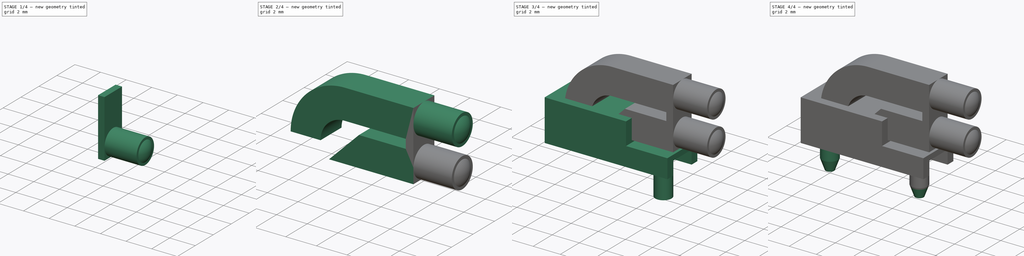
[diagram: build sequence overview — one tinted view per stage of 4, left to right]
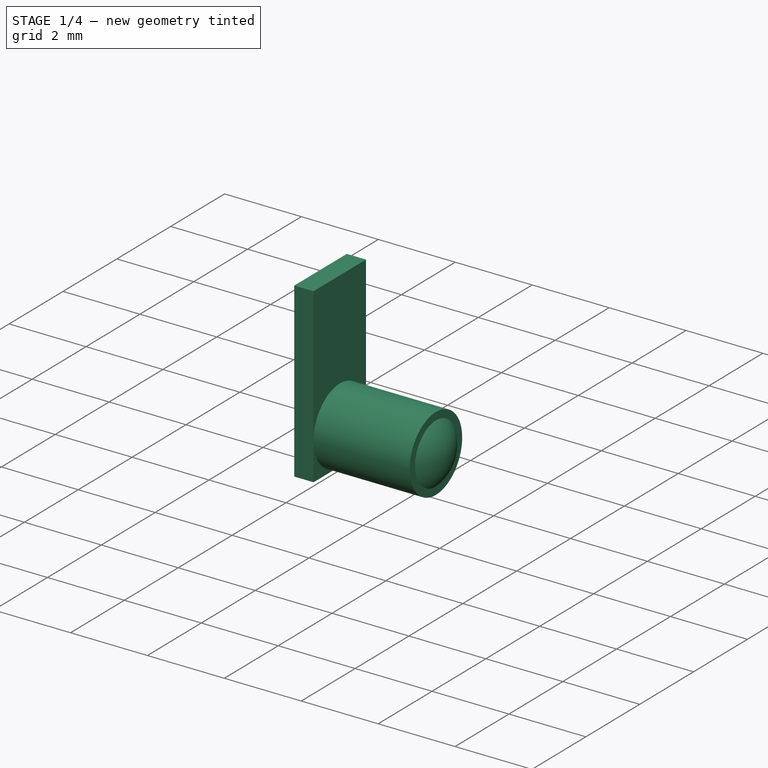
[diagram: stage 1 of 4 — iso view after this stage's code; geometry added in this stage tinted green]
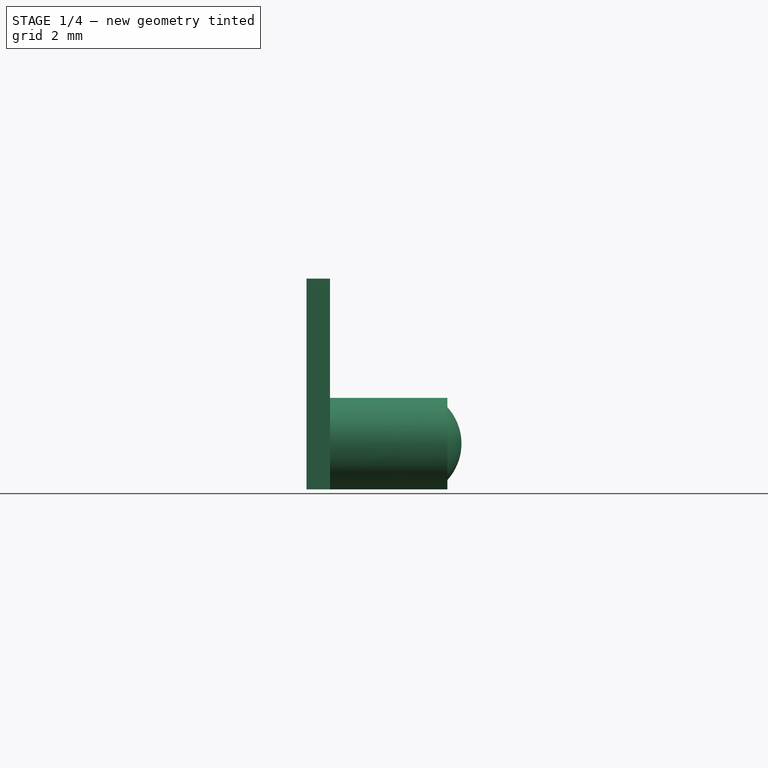
[diagram: stage 1 of 4 — front view after this stage's code; geometry added in this stage tinted green]
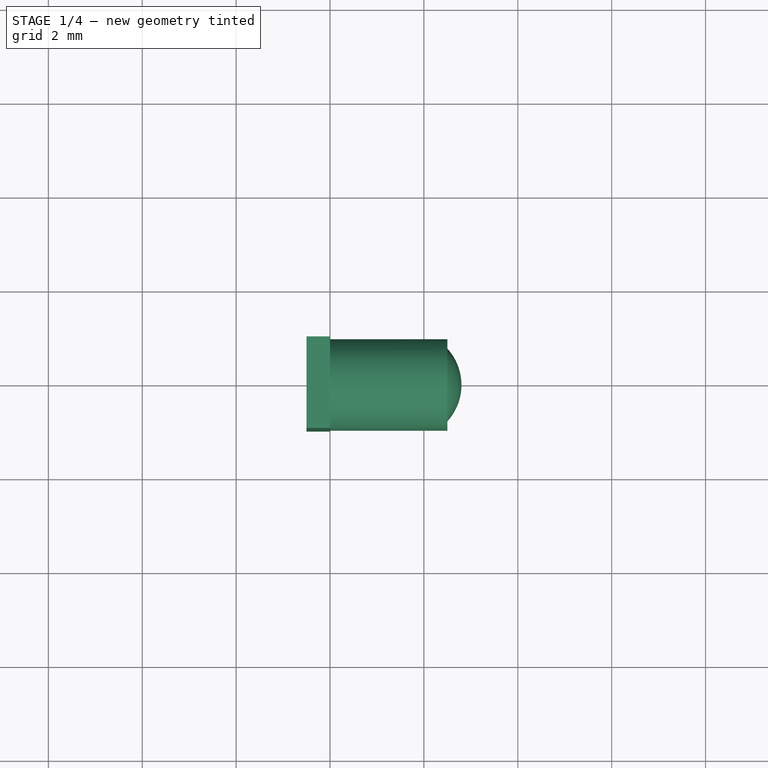
[diagram: stage 1 of 4 — top view after this stage's code; geometry added in this stage tinted green]
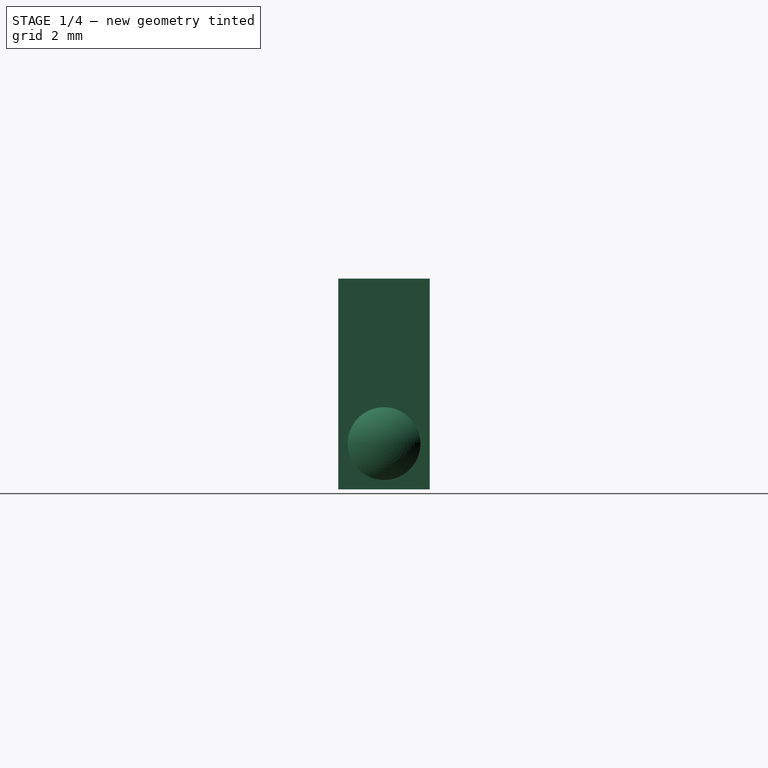
[diagram: stage 1 of 4 — right view after this stage's code; geometry added in this stage tinted green]
FCSTD DOCUMENT  (FreeCAD 0.19R24267 +99 (Git))
Label: Lightpipe_Mentor_1296-2012
License: Creative Commons Attribution-NonCommercial-ShareAlike
LicenseURL: http://creativecommons.org/licenses/by-nc-sa/4.0/
objects: Sketcher::SketchObject×7, PartDesign::Pad×5, PartDesign::LinearPattern×2, PartDesign::Revolution×1, PartDesign::Pocket×1, PartDesign::Chamfer×1, PartDesign::Body×1, PartDesign::CoordinateSystem×1, App::Part×1
note: 27 computed .brp shape members not serialized (recipe doc carries the construction recipe); baked Part::Feature solids carry a one-line shape summary decoded from their .brp

FEATURE [Sketcher::SketchObject] Sketch
  FullyConstrained = true
  MapMode = 5
  Placement = pos=(0,0,0) rot=(1,0,0;1.5708rad)
  Support = -> [XZ_Plane]
  sketch-geometry (5):
    g0: LineSegment StartX=0 StartY=0 StartZ=0 EndX=0 EndY=0.975 EndZ=0
    g1: LineSegment StartX=0 StartY=0.975 StartZ=0 EndX=2.5 EndY=0.975 EndZ=0
    g2: LineSegment StartX=2.5 StartY=0.975 StartZ=0 EndX=2.5 EndY=0.775 EndZ=0
    g3: ArcOfCircle CenterX=1.64896 CenterY=0 CenterZ=0 NormalX=0 NormalY=0 NormalZ=1 AngleXU=0 Radius=1.15104 StartAngle=0 EndAngle=0.738667
    g4: LineSegment StartX=2.8 StartY=0 StartZ=0 EndX=0 EndY=0 EndZ=0
  constraints (15):
    c: Coincident(g-1,g0)
    c: PointOnObject(g0,g-2)
    c: Coincident(g0,g1)
    c: Horizontal(g1)
    c: Coincident(g1,g2)
    c: PointOnObject(g3,g-1)
    c: Coincident(g3,g4)
    c: Coincident(g4,g0)
    c: Coincident(g3,g2)
    c: PointOnObject(g3,g-1)
    c: Distance(g0) = 0.975
    c: Vertical(g2)
    c: Distance(g4) = 2.8
    c: Distance(g1) = 2.5
    c: Distance(g2) = 0.2
FEATURE [Sketcher::SketchObject] Sketch001
  FullyConstrained = true
  MapMode = 5
  Placement = pos=(0,0,0) rot=(0.57735,0.57735,0.57735;2.0944rad)
  Support = -> [YZ_Plane]
  sketch-geometry (4):
    g0: LineSegment StartX=-0.975 StartY=3.515 StartZ=0 EndX=0.975 EndY=3.515 EndZ=0
    g1: LineSegment StartX=0.975 StartY=3.515 StartZ=0 EndX=0.975 EndY=-0.975 EndZ=0
    g2: LineSegment StartX=0.975 StartY=-0.975 StartZ=0 EndX=-0.975 EndY=-0.975 EndZ=0
    g3: LineSegment StartX=-0.975 StartY=-0.975 StartZ=0 EndX=-0.975 EndY=3.515 EndZ=0
  constraints (11):
    c: Coincident(g0,g1)
    c: Coincident(g1,g2)
    c: Coincident(g2,g3)
    c: Coincident(g3,g0)
    c: Horizontal(g0)
    c: Vertical(g1)
    c: Vertical(g3)
    c: Symmetric(g2,g1,g-2)
    c: Distance(g0) = 1.95
    c: Distance(g1) = 4.49
    c: Distance(g-1,g2) = 0.975
FEATURE [PartDesign::Pad] Pad
  Direction = (1,1,1)
  Length = 0.5
  Length2 = 100
  Placement = pos=(0,0,0) rot=(0.57735,0.57735,0.57735;2.0944rad)
  Profile = -> Sketch001
  Refine = true
  Reversed = true
  Type = 0
FEATURE [PartDesign::Revolution] Revolution
  Angle = 360
  Axis = (1,0,0)
  Base = (0,0,0)
  BaseFeature = -> Pad
  Placement = pos=(0,0,0) rot=(0.57735,0.57735,0.57735;2.0944rad)
  Profile = -> Sketch
  ReferenceAxis = -> X_Axis
  Refine = true
  Reversed = true
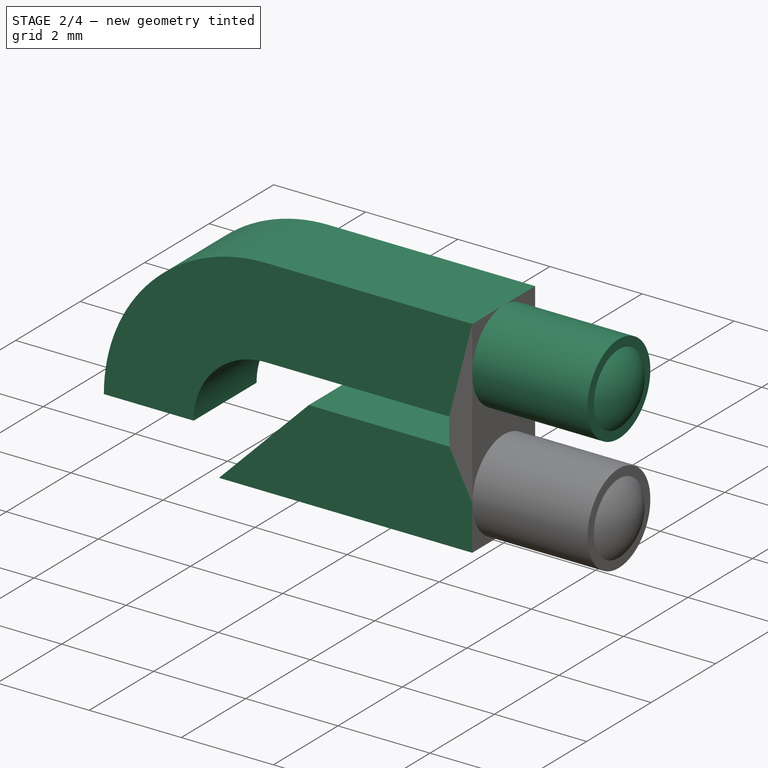
[diagram: stage 2 of 4 — iso view after this stage's code; geometry added in this stage tinted green]
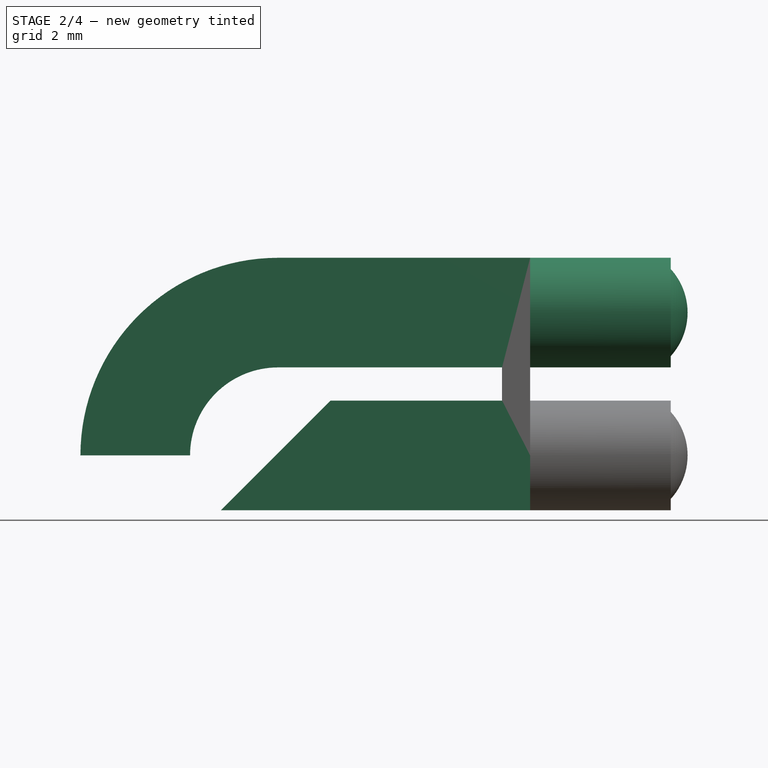
[diagram: stage 2 of 4 — front view after this stage's code; geometry added in this stage tinted green]
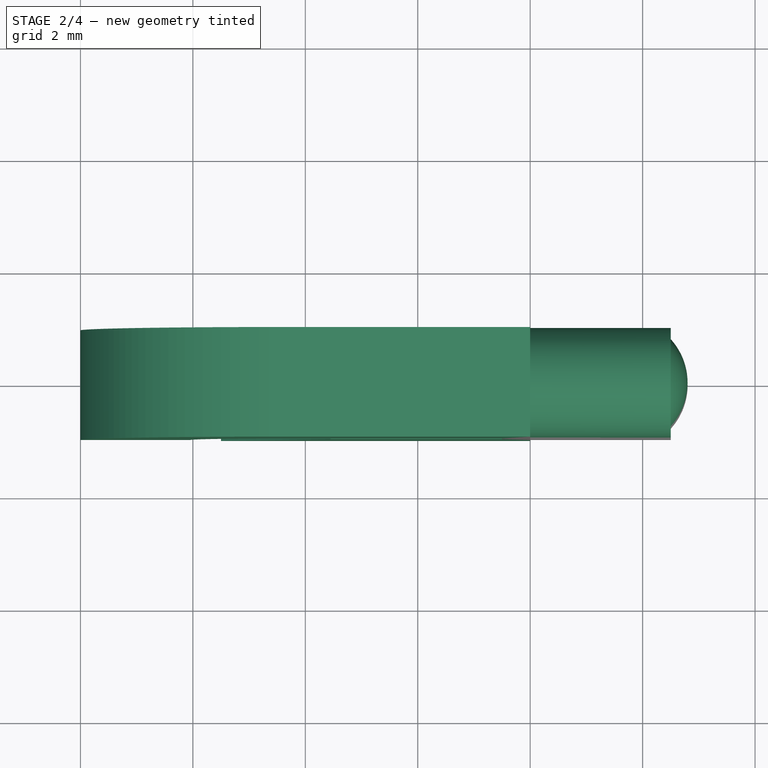
[diagram: stage 2 of 4 — top view after this stage's code; geometry added in this stage tinted green]
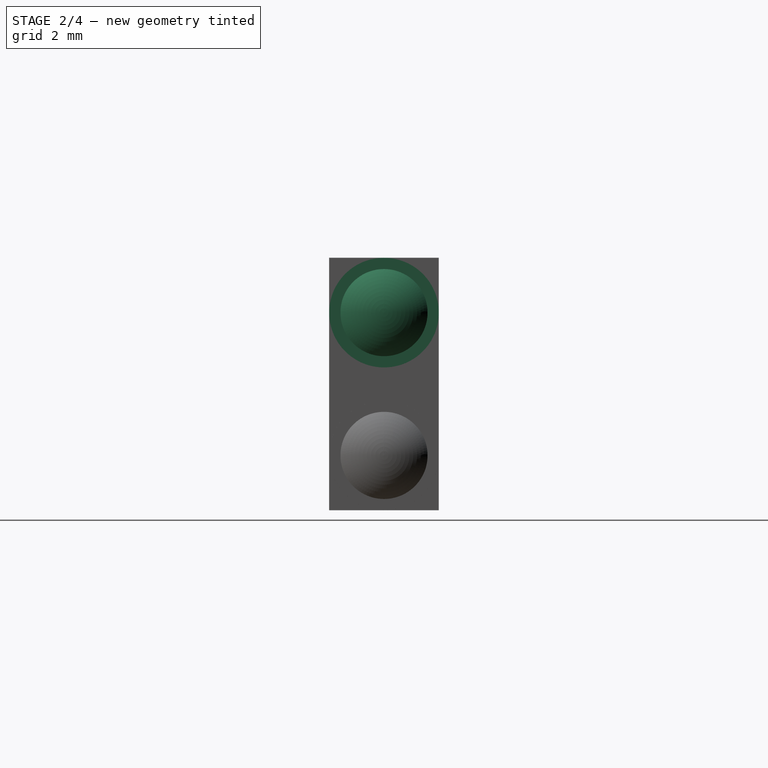
[diagram: stage 2 of 4 — right view after this stage's code; geometry added in this stage tinted green]
FEATURE [PartDesign::LinearPattern] LinearPattern
  BaseFeature = -> Revolution
  Direction = -> Z_Axis
  Length = 2.54
  Occurrences = 2
  Originals = -> [Revolution]
  Placement = pos=(0,0,0) rot=(0.57735,0.57735,0.57735;2.0944rad)
  Refine = true
FEATURE [Sketcher::SketchObject] Sketch002
  FullyConstrained = true
  MapMode = 5
  Placement = pos=(0,0,0) rot=(1,0,0;1.5708rad)
  Support = -> [XZ_Plane]
  sketch-geometry (6):
    g0: LineSegment StartX=-0.5 StartY=3.515 StartZ=0 EndX=-4.485 EndY=3.515 EndZ=0
    g1: ArcOfCircle CenterX=-4.485 CenterY=0 CenterZ=0 NormalX=0 NormalY=0 NormalZ=1 AngleXU=0 Radius=3.515 StartAngle=1.5708 EndAngle=3.14159
    g2: LineSegment StartX=-8 StartY=4e-16 StartZ=0 EndX=-6.05 EndY=4e-16 EndZ=0
    g3: LineSegment StartX=-4.485 StartY=1.565 StartZ=0 EndX=-0.5 EndY=1.565 EndZ=0
    g4: LineSegment StartX=-0.5 StartY=1.565 StartZ=0 EndX=-0.5 EndY=3.515 EndZ=0
    g5: ArcOfCircle CenterX=-4.485 CenterY=0 CenterZ=0 NormalX=0 NormalY=0 NormalZ=1 AngleXU=0 Radius=1.565 StartAngle=1.5708 EndAngle=3.14159
  constraints (17):
    c: Horizontal(g0)
    c: Tangent(g0,g1) = -1.5708
    c: Angle(g1) = 1.5708
    c: Horizontal(g2)
    c: Coincident(g3,g4)
    c: Coincident(g4,g0)
    c: Coincident(g2,g1)
    c: Horizontal(g3)
    c: Vertical(g4)
    c: Coincident(g5,g1)
    c: Coincident(g5,g2)
    c: Tangent(g5,g3) = 1.5708
    c: PointOnObject(g1,g-1)
    c: Distance(g2) = 1.95
    c: DistanceY(g-1,g0) = 3.515
    c: DistanceX(g-2,g3) = -0.5
    c: DistanceX(g-2,g1) = -8
FEATURE [PartDesign::Pad] Pad001
  BaseFeature = -> LinearPattern
  Direction = (1,1,1)
  Length = 1.95
  Length2 = 100
  Midplane = true
  Placement = pos=(0,0,0) rot=(0.57735,0.57735,0.57735;2.0944rad)
  Profile = -> Sketch002
  Refine = true
  Type = 0
FEATURE [Sketcher::SketchObject] Sketch003
  FullyConstrained = true
  MapMode = 5
  Placement = pos=(0,0,0) rot=(1,0,0;1.5708rad)
  Support = -> [XZ_Plane]
  sketch-geometry (4):
    g0: LineSegment StartX=-0.5 StartY=0.975 StartZ=0 EndX=-3.55 EndY=0.975 EndZ=0
    g1: LineSegment StartX=-5.5 StartY=-0.975 StartZ=0 EndX=-0.5 EndY=-0.975 EndZ=0
    g2: LineSegment StartX=-0.5 StartY=-0.975 StartZ=0 EndX=-0.5 EndY=0.975 EndZ=0
    g3: LineSegment StartX=-3.55 StartY=0.975 StartZ=0 EndX=-5.5 EndY=-0.975 EndZ=0
  constraints (11):
    c: Horizontal(g0)
    c: Coincident(g1,g2)
    c: Coincident(g2,g0)
    c: Horizontal(g1)
    c: DistanceX(g-2,g1) = -0.5
    c: Distance(g2) = 1.95
    c: Symmetric(g1,g0,g-1)
    c: Coincident(g3,g0)
    c: Coincident(g3,g1)
    c: Angle(g1,g3) = 0.785398
    c: Distance(g1) = 5
FEATURE [PartDesign::Pad] Pad002
  BaseFeature = -> Pad001
  Direction = (1,1,1)
  Length = 1.95
  Length2 = 100
  Midplane = true
  Placement = pos=(0,0,0) rot=(0.57735,0.57735,0.57735;2.0944rad)
  Profile = -> Sketch003
  Refine = true
  Type = 0
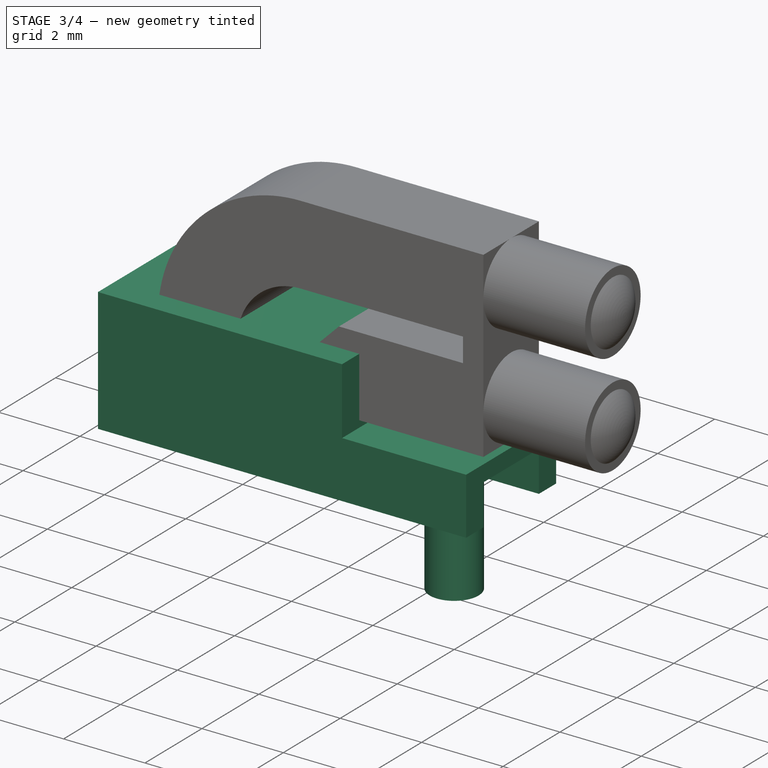
[diagram: stage 3 of 4 — iso view after this stage's code; geometry added in this stage tinted green]
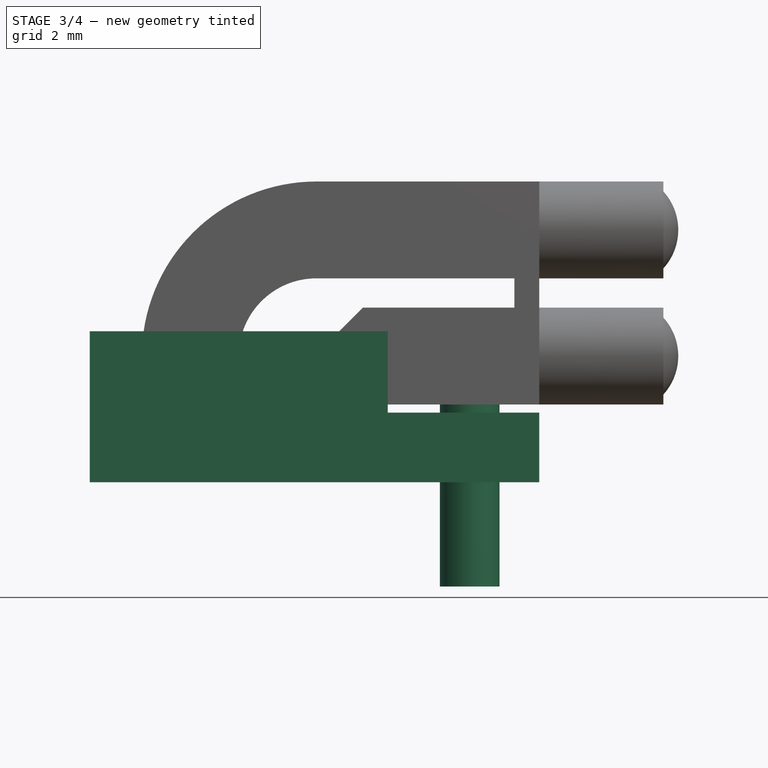
[diagram: stage 3 of 4 — front view after this stage's code; geometry added in this stage tinted green]
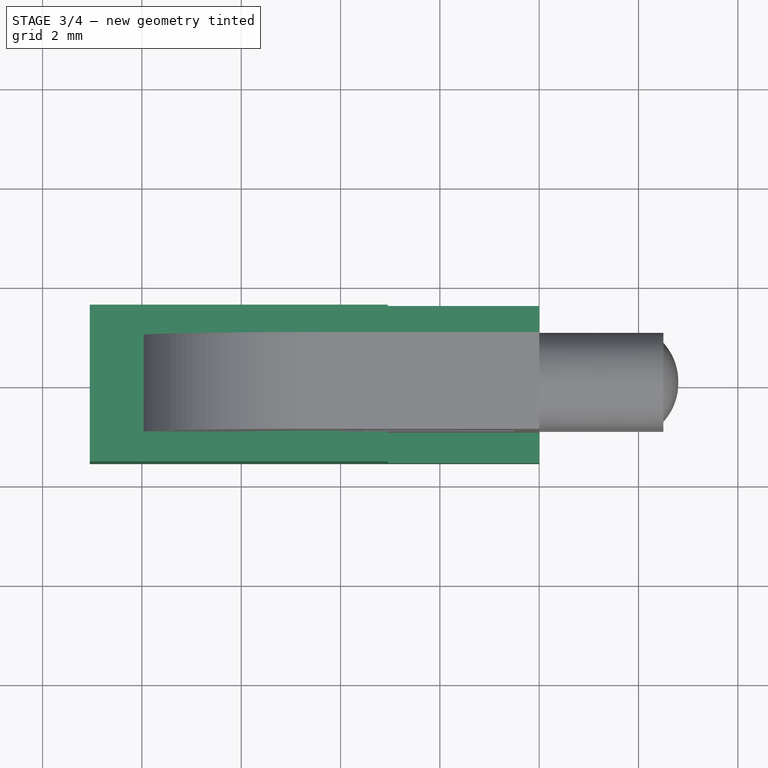
[diagram: stage 3 of 4 — top view after this stage's code; geometry added in this stage tinted green]
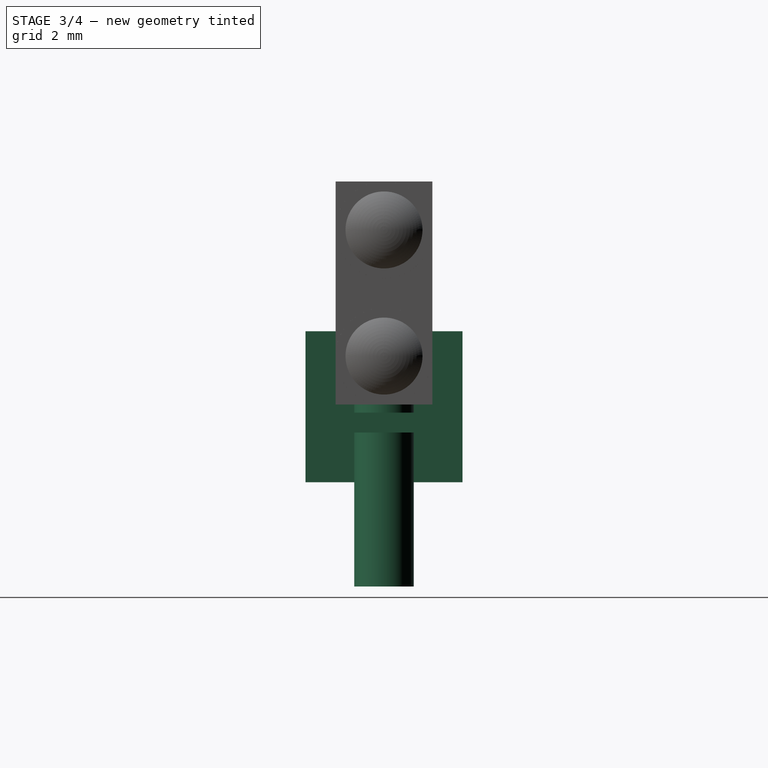
[diagram: stage 3 of 4 — right view after this stage's code; geometry added in this stage tinted green]
FEATURE [Sketcher::SketchObject] Sketch004
  FullyConstrained = true
  MapMode = 5
  Placement = pos=(0,0,0) rot=(1,0,0;1.5708rad)
  Support = -> [XZ_Plane]
  sketch-geometry (6):
    g0: LineSegment StartX=0 StartY=-2.54 StartZ=0 EndX=-9.05 EndY=-2.54 EndZ=0
    g1: LineSegment StartX=-9.05 StartY=-2.54 StartZ=0 EndX=-9.05 EndY=0.5 EndZ=0
    g2: LineSegment StartX=-9.05 StartY=0.5 StartZ=0 EndX=-3.05 EndY=0.5 EndZ=0
    g3: LineSegment StartX=-3.05 StartY=0.5 StartZ=0 EndX=-3.05 EndY=-1.14 EndZ=0
    g4: LineSegment StartX=-3.05 StartY=-1.14 StartZ=0 EndX=0 EndY=-1.14 EndZ=0
    g5: LineSegment StartX=0 StartY=-1.14 StartZ=0 EndX=0 EndY=-2.54 EndZ=0
  constraints (18):
    c: PointOnObject(g0,g-2)
    c: Horizontal(g0)
    c: Coincident(g0,g1)
    c: Coincident(g1,g2)
    c: Horizontal(g2)
    c: Coincident(g2,g3)
    c: Coincident(g3,g4)
    c: PointOnObject(g4,g-2)
    c: Horizontal(g4)
    c: Coincident(g4,g5)
    c: Coincident(g5,g0)
    c: Vertical(g3)
    c: Vertical(g1)
    c: Distance(g-1,g1) = 9.05
    c: DistanceY(g-1,g0) = -2.54
    c: Distance(g5) = 1.4
    c: Distance(g-1,g2) = 0.5
    c: Distance(g2) = 6
FEATURE [PartDesign::Pad] Pad003
  BaseFeature = -> Pad002
  Direction = (1,1,1)
  Length = 3.16
  Length2 = 100
  Midplane = true
  Placement = pos=(0,0,0) rot=(0.57735,0.57735,0.57735;2.0944rad)
  Profile = -> Sketch004
  Refine = true
  Type = 0
FEATURE [Sketcher::SketchObject] Sketch005
  FullyConstrained = true
  MapMode = 5
  Placement = pos=(0,-1.1e-15,-2.54) rot=(0.707107,0.707107,0;3.14159rad)
  Support = -> [Pad003]
  sketch-geometry (8):
    g0: LineSegment StartX=-0.975 StartY=0 StartZ=0 EndX=0.975 EndY=0 EndZ=0
    g1: LineSegment StartX=0.975 StartY=0 StartZ=0 EndX=0.975 EndY=-4.5 EndZ=0
    g2: LineSegment StartX=0.975 StartY=-4.5 StartZ=0 EndX=-0.975 EndY=-4.5 EndZ=0
    g3: LineSegment StartX=-0.975 StartY=-4.5 StartZ=0 EndX=-0.975 EndY=0 EndZ=0
    g4: LineSegment StartX=-0.975 StartY=-5 StartZ=0 EndX=0.975 EndY=-5 EndZ=0
    g5: LineSegment StartX=0.975 StartY=-5 StartZ=0 EndX=0.975 EndY=-9.05 EndZ=0
    g6: LineSegment StartX=0.975 StartY=-9.05 StartZ=0 EndX=-0.975 EndY=-9.05 EndZ=0
    g7: LineSegment StartX=-0.975 StartY=-9.05 StartZ=0 EndX=-0.975 EndY=-5 EndZ=0
  constraints (23):
    c: Coincident(g0,g1)
    c: Coincident(g1,g2)
    c: Coincident(g2,g3)
    c: Coincident(g3,g0)
    c: Horizontal(g0)
    c: Horizontal(g2)
    c: Vertical(g1)
    c: Vertical(g3)
    c: Coincident(g4,g5)
    c: Coincident(g5,g6)
    c: Coincident(g6,g7)
    c: Coincident(g7,g4)
    c: Horizontal(g6)
    c: Vertical(g5)
    c: Vertical(g7)
    c: Distance(g6) = 1.95
    c: Vertical(g4,g2)
    c: Vertical(g4,g1)
    c: Symmetric(g4,g4,g-2)
    c: Distance(g-1,g6) = 9.05
    c: Distance(g4,g2) = 0.5
    c: PointOnObject(g-1,g0)
    c: Distance(g-1,g2) = 4.5
FEATURE [PartDesign::Pocket] Pocket
  BaseFeature = -> Pad003
  Length = 1
  Length2 = 100
  Placement = pos=(0,0,0) rot=(0.57735,0.57735,0.57735;2.0944rad)
  Profile = -> Sketch005
  Refine = true
  Type = 0
FEATURE [Sketcher::SketchObject] Sketch006
  FullyConstrained = true
  MapMode = 5
  Support = -> [XY_Plane]
  sketch-geometry (1):
    g0: Circle CenterX=-1.4 CenterY=0 CenterZ=0 NormalX=0 NormalY=0 NormalZ=1 AngleXU=0 Radius=0.6
  constraints (3):
    c: PointOnObject(g0,g-1)
    c: Diameter(g0) = 1.2
    c: DistanceX(g-2,g0) = -1.4
FEATURE [PartDesign::Pad] Pad004
  BaseFeature = -> Pocket
  Direction = (1,1,1)
  Length = 4.64
  Length2 = 100
  Placement = pos=(0,0,0) rot=(0.57735,0.57735,0.57735;2.0944rad)
  Profile = -> Sketch006
  Refine = true
  Reversed = true
  Type = 0
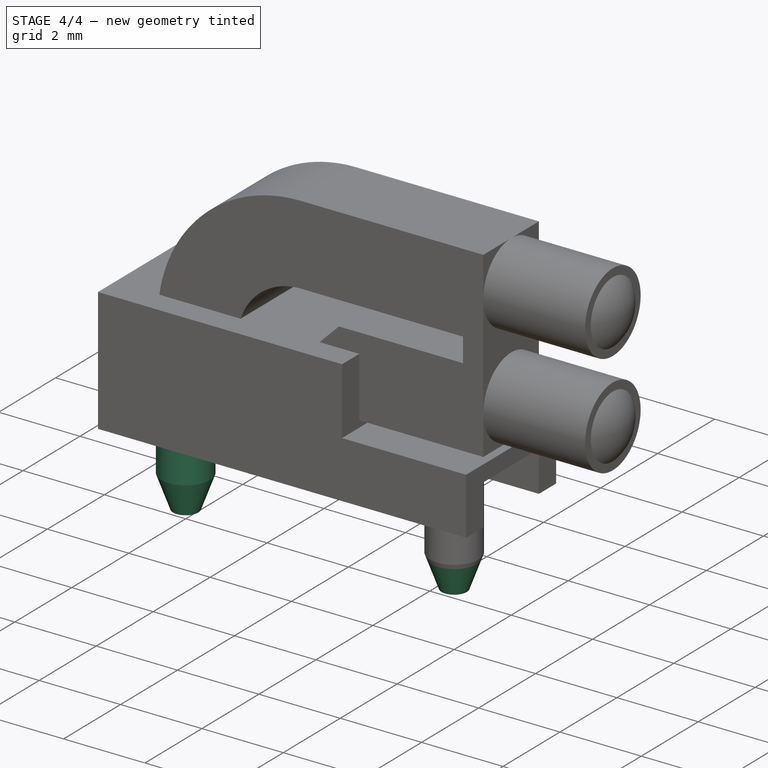
[diagram: stage 4 of 4 — iso view after this stage's code; geometry added in this stage tinted green]
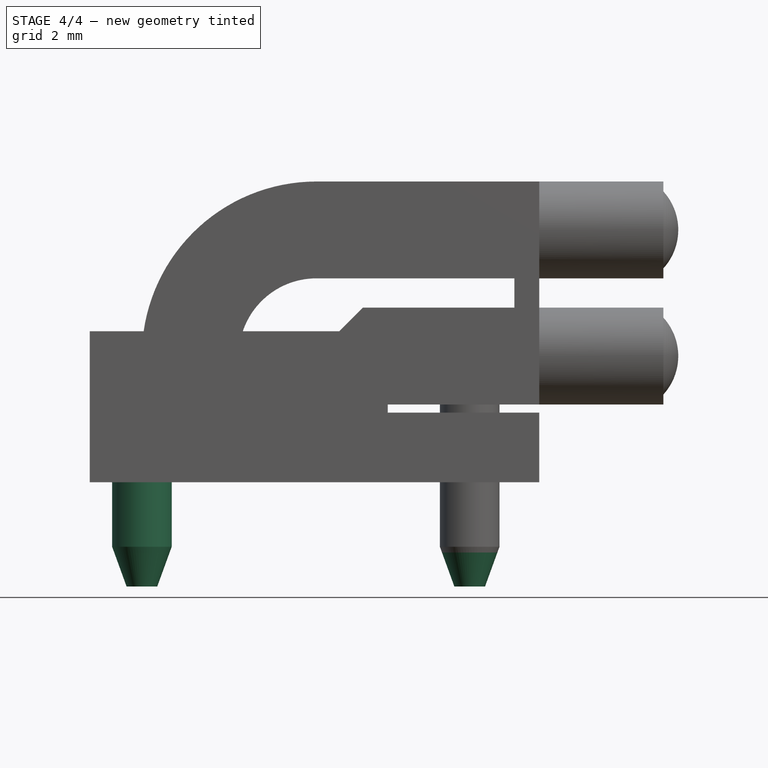
[diagram: stage 4 of 4 — front view after this stage's code; geometry added in this stage tinted green]
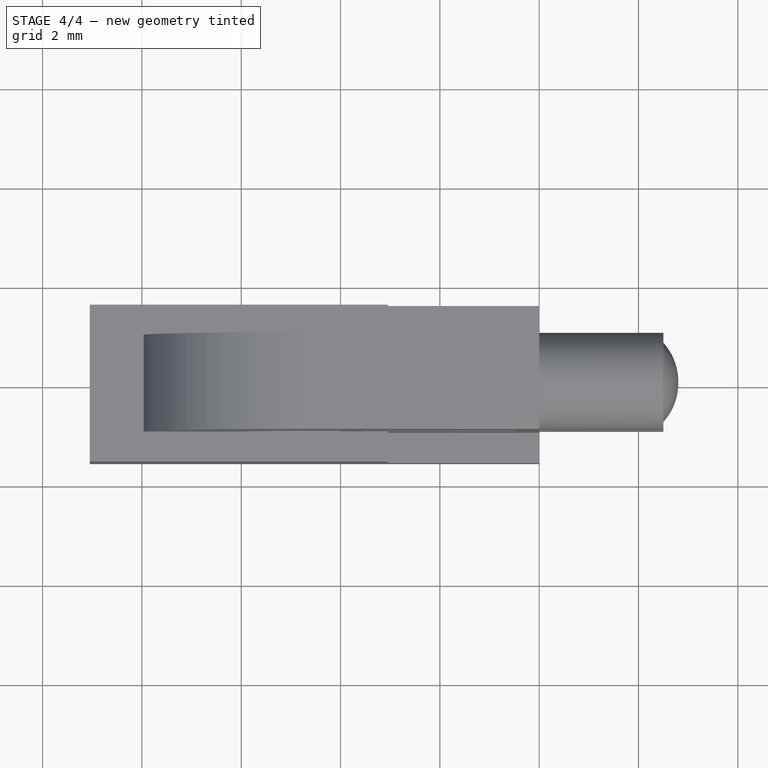
[diagram: stage 4 of 4 — top view after this stage's code; geometry added in this stage tinted green]
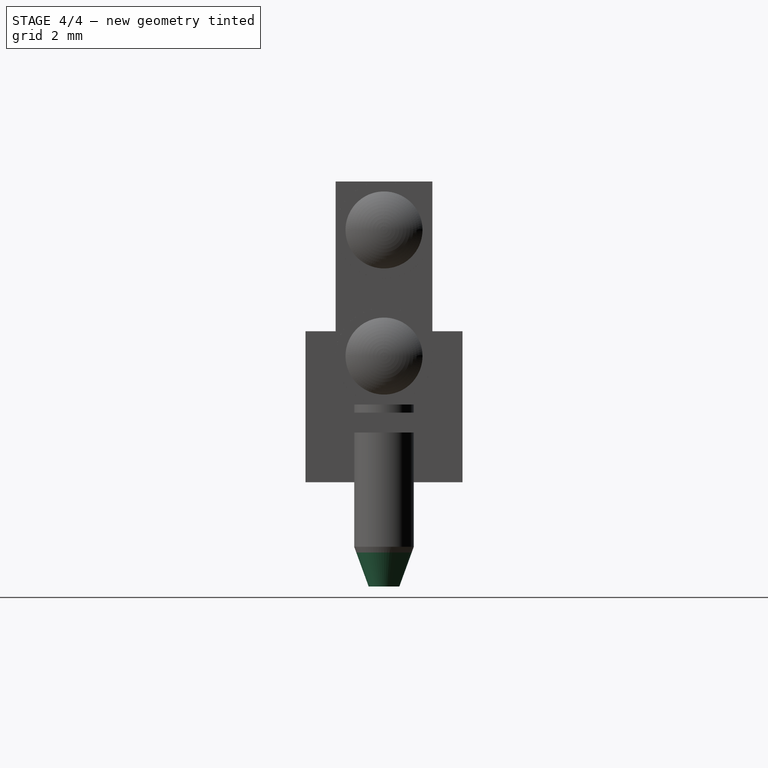
[diagram: stage 4 of 4 — right view after this stage's code; geometry added in this stage tinted green]
FEATURE [PartDesign::LinearPattern] LinearPattern001
  BaseFeature = -> Pad004
  Direction = -> X_Axis
  Length = 6.6
  Occurrences = 2
  Originals = -> [Pad004]
  Placement = pos=(0,0,0) rot=(0.57735,0.57735,0.57735;2.0944rad)
  Refine = true
  Reversed = true
FEATURE [PartDesign::Chamfer] Chamfer
  Angle = 20
  Base = -> LinearPattern001 [Edge110,Edge108]
  BaseFeature = -> LinearPattern001
  ChamferType = 2
  FlipDirection = false
  Placement = pos=(0,0,0) rot=(0.57735,0.57735,0.57735;2.0944rad)
  Refine = true
  Size = 0.8
  Size2 = 1
  SupportTransform = false
FEATURE [PartDesign::Body] Body
  Group = -> [Sketch,Sketch001,Pad,Revolution,LinearPattern,Sketch002,Pad001,Sketch003,Pad002,Sketch004,Pad003,Sketch005,Pocket,Sketch006,Pad004,LinearPattern001,Chamfer]
  Origin = -> Origin
  Tip = -> Chamfer
FEATURE [PartDesign::CoordinateSystem] LCS_0
  AttacherType = Attacher::AttachEngine3D
  MapMode = 2
  Support = -> [X_Axis001]
FEATURE [App::Part] Lightpipe
  Group = -> [LCS_0,Body]
  Origin = -> Origin001
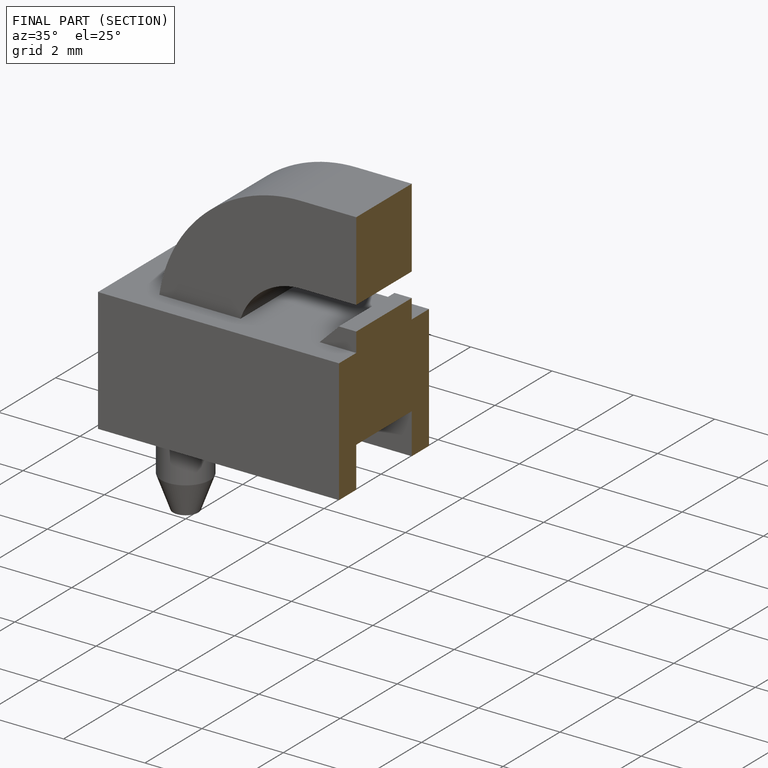
[diagram: finished part — half-section view (interior)]
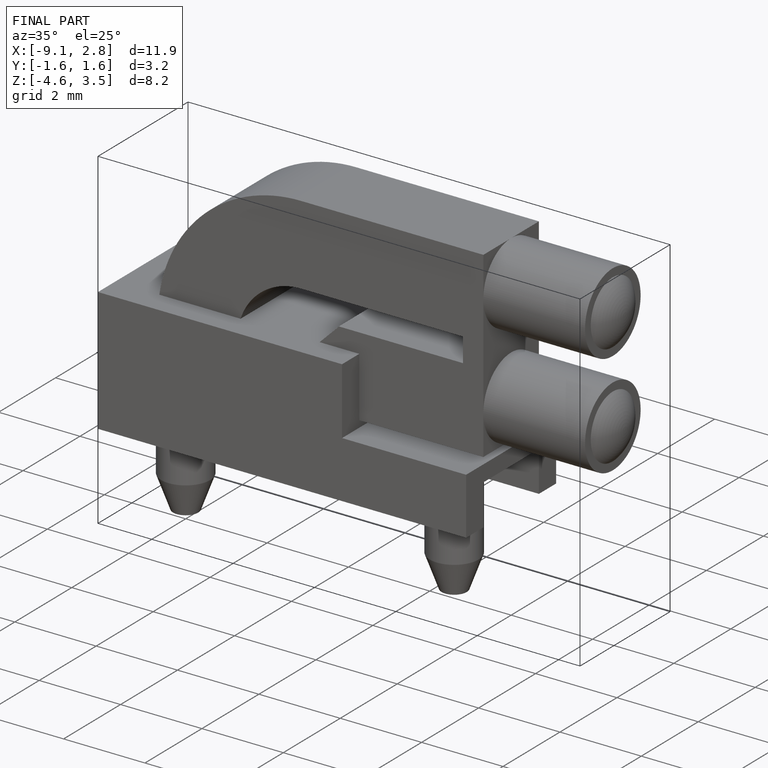
[diagram: finished part — iso view with bounding-box wireframe]
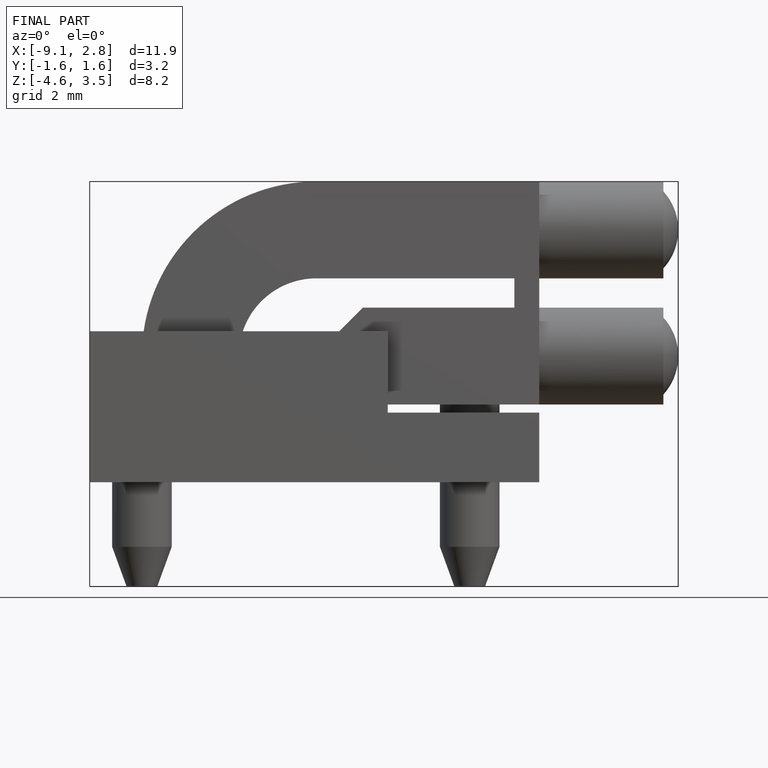
[diagram: finished part — front view with bounding-box wireframe]
